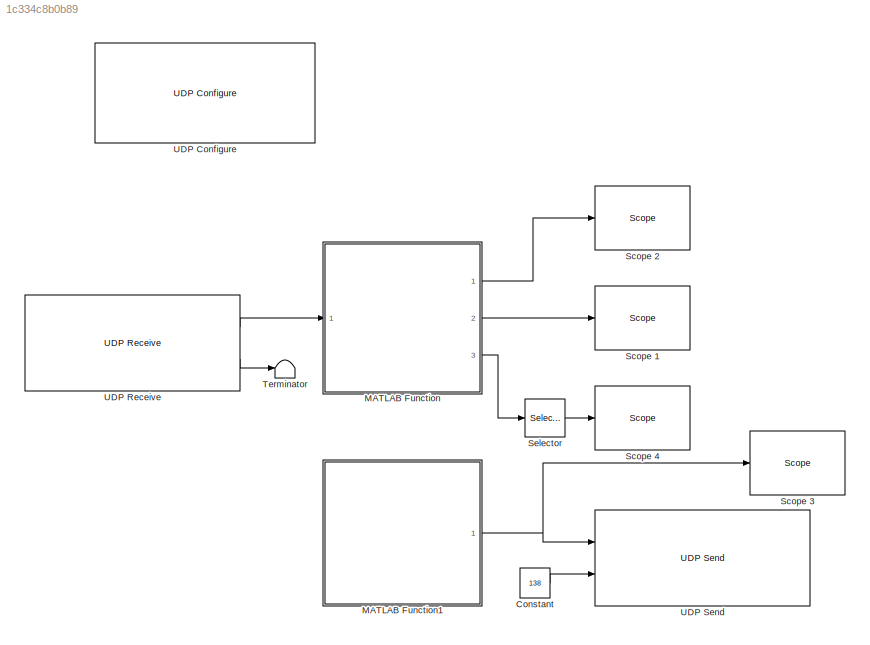
MODEL slx_1c334c8b0b89
KIND model
CONFIG AbsTol = auto
CONFIG EnableMultiTasking = on
CONFIG FixedStep = 0.01
CONFIG MaxStep = auto
CONFIG MinStep = auto
CONFIG RelTol = 1e-3
CONFIG SampleTimeConstraint = Unconstrained
CONFIG Solver = FixedStepAuto
CONFIG SolverName = FixedStepAuto
CONFIG StartTime = 0.0
CONFIG StopTime = 1000
BLOCK [Constant] Constant
  Value = 138
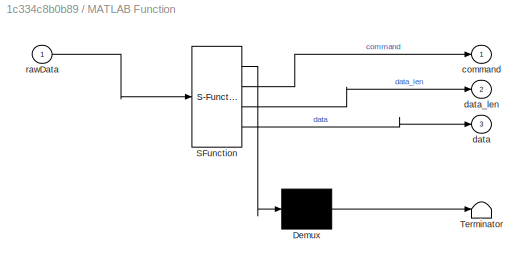
BLOCK [SubSystem] MATLAB Function
  ErrorFcn = Stateflow.Translate.translate
  PermitHierarchicalResolution = ExplicitOnly
  Ports = [1, 3]
  RequestExecContextInheritance = off
  SFBlockType = MATLAB Function
  TreatAsAtomicUnit = on
BLOCK [Demux] MATLAB Function/ Demux 
  Outputs = 1
  Ports = [1, 1]
BLOCK [S-Function] MATLAB Function/ SFunction 
  EnableBusSupport = on
  FunctionName = sf_sfun
  PortCounts = [1 4]
  Ports = [1, 4]
  SFcnIsStateOwnerBlock = off
  SFunctionDeploymentMode = off
  Tag = Stateflow S-Function 2
BLOCK [Terminator] MATLAB Function/ Terminator 
BLOCK [Outport] MATLAB Function/command
BLOCK [Outport] MATLAB Function/data
  Port = 3
BLOCK [Outport] MATLAB Function/data_len
  Port = 2
BLOCK [Inport] MATLAB Function/rawData
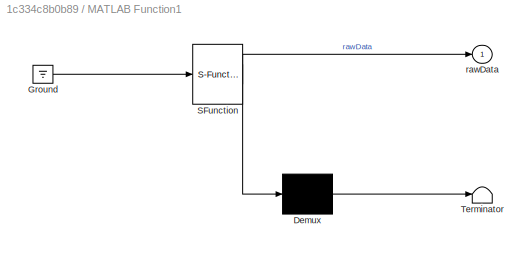
BLOCK [SubSystem] MATLAB Function1
  ErrorFcn = Stateflow.Translate.translate
  PermitHierarchicalResolution = ExplicitOnly
  Ports = [0, 1]
  RequestExecContextInheritance = off
  SFBlockType = MATLAB Function
  TreatAsAtomicUnit = on
BLOCK [Demux] MATLAB Function1/ Demux 
  Outputs = 1
  Ports = [1, 1]
BLOCK [Ground] MATLAB Function1/ Ground 
BLOCK [S-Function] MATLAB Function1/ SFunction 
  EnableBusSupport = on
  FunctionName = sf_sfun
  PortCounts = [1 2]
  Ports = [1, 2]
  SFcnIsStateOwnerBlock = off
  SFunctionDeploymentMode = off
  Tag = Stateflow S-Function 1
BLOCK [Terminator] MATLAB Function1/ Terminator 
BLOCK [Outport] MATLAB Function1/rawData
BLOCK [Reference] Scope 1  REF=slrtlib/Displays and
Logging/Scope 
  Ports = [1]
  SourceBlock = slrtlib/Displays and\nLogging/Scope
  SourceProductBaseCode = XP
  SourceType = xpcscopeblock
BLOCK [Reference] Scope 2  REF=slrtlib/Displays and
Logging/Scope 
  Ports = [1]
  SourceBlock = slrtlib/Displays and\nLogging/Scope
  SourceProductBaseCode = XP
  SourceType = xpcscopeblock
BLOCK [Reference] Scope 3  REF=slrtlib/Displays and
Logging/Scope 
  Ports = [1]
  SourceBlock = slrtlib/Displays and\nLogging/Scope
  SourceProductBaseCode = XP
  SourceType = xpcscopeblock
BLOCK [Reference] Scope 4  REF=slrtlib/Displays and
Logging/Scope 
  Ports = [1]
  SourceBlock = slrtlib/Displays and\nLogging/Scope
  SourceProductBaseCode = XP
  SourceType = xpcscopeblock
BLOCK [Selector] Selector
  IndexOptions = Index vector (dialog),Index vector (dialog)
  Indices = [1],[1 2]
  InputPortWidth = 3
  NumberOfDimensions = 2
  OutputSizes = 1,1
  Ports = [1, 1]
BLOCK [Terminator] Terminator
BLOCK [Reference] UDP Configure  REF=xpcrtudplib/UDP Configure
  Ports = []
  Priority = -1
  SourceBlock = xpcrtudplib/UDP Configure
  SourceProductBaseCode = XP
  SourceType = slrtudpconfigure
BLOCK [Reference] UDP Receive  REF=xpcrtudplib/UDP Receive
  Ports = [0, 2]
  SourceBlock = xpcrtudplib/UDP Receive
  SourceProductBaseCode = XP
  SourceType = slrtudpreceive
BLOCK [Reference] UDP Send  REF=xpcrtudplib/UDP Send
  Ports = [2]
  SourceBlock = xpcrtudplib/UDP Send
  SourceProductBaseCode = XP
  SourceType = slrtudpsend
LINE Constant:1 -> UDP Send:2
NET MATLAB Function1:1 -> Scope 3:1, UDP Send:1
LINE MATLAB Function:1 -> Scope 2:1
LINE MATLAB Function:2 -> Scope 1:1
LINE MATLAB Function:3 -> Selector:1
LINE Selector:1 -> Scope 4:1
LINE UDP Receive:1 -> MATLAB Function:1
LINE UDP Receive:2 -> Terminator:1
note: NET lines group one-source signal fan-out (src -> all destinations, sorted); 1:1 wires keep LINE
CHART MATLAB Function states=1 transitions=1
  STATE_LABEL 'eML_blk_kernel()'
  STATE_LABEL 'SCRIPT:\nfunction [command, data_len, data] = parser(rawData)\n    command = uint8(1);\n    data_len = uint8(0);\n    data = zeros(8, 4);\n    [command, data_len, data] = MotorBit.intoBaseModel(rawData);\nend'
CHART MATLAB Function1 states=1 transitions=1
  STATE_LABEL 'eML_blk_kernel()'
  STATE_LABEL 'SCRIPT:\nfunction rawData = packer()\n    data = [1,10000,1000,100];\n    rawData = MotorBit.fromBaseModel(100, data);\nend\n'
CHART  states=0 transitions=0
CHART  states=0 transitions=0
